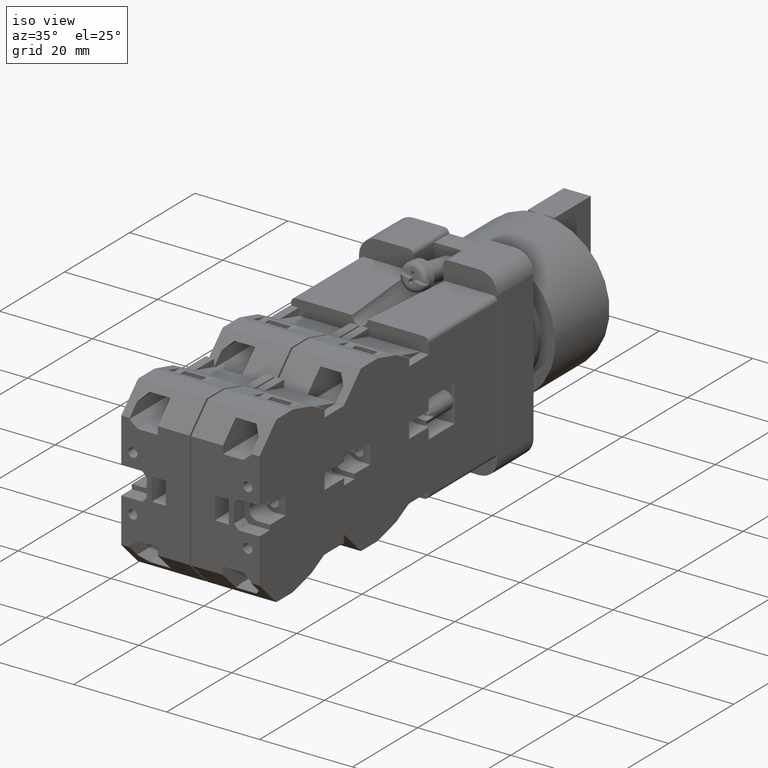
[diagram: clean part render]
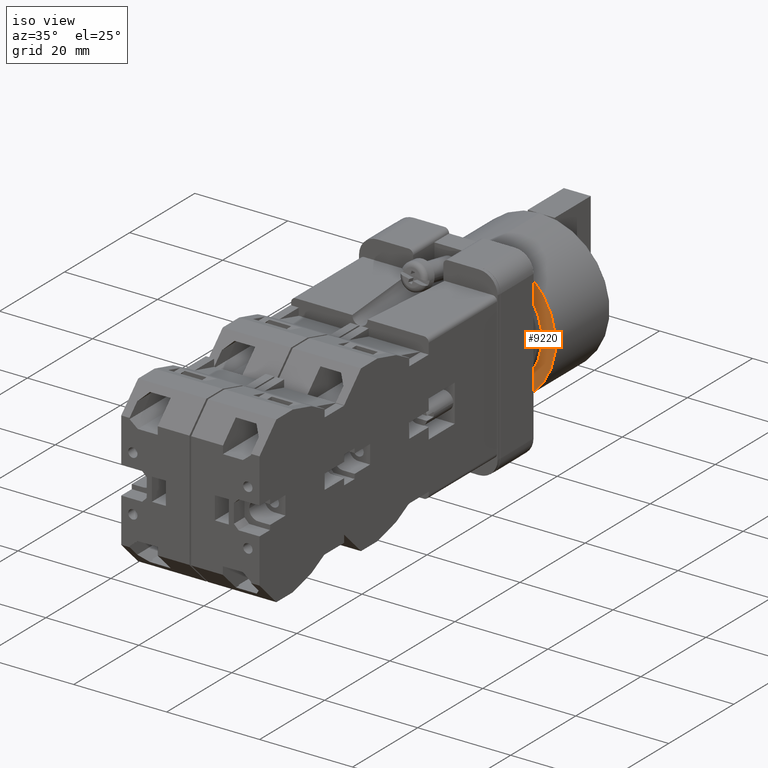
[diagram: same view with one face highlighted and labeled with its STEP entity id]
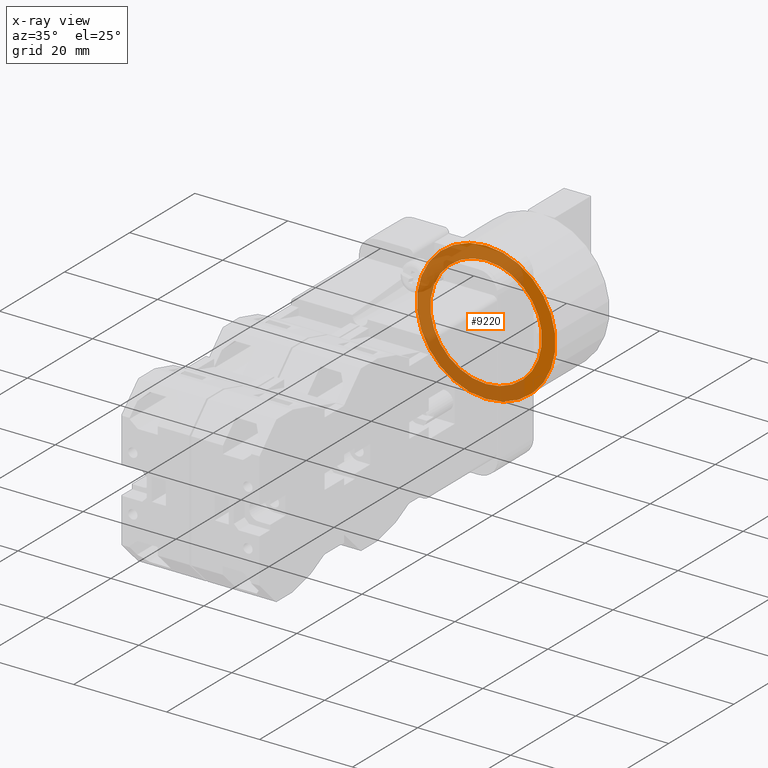
[diagram: x-ray of the same camera — body ghosted, the highlighted face saturated]
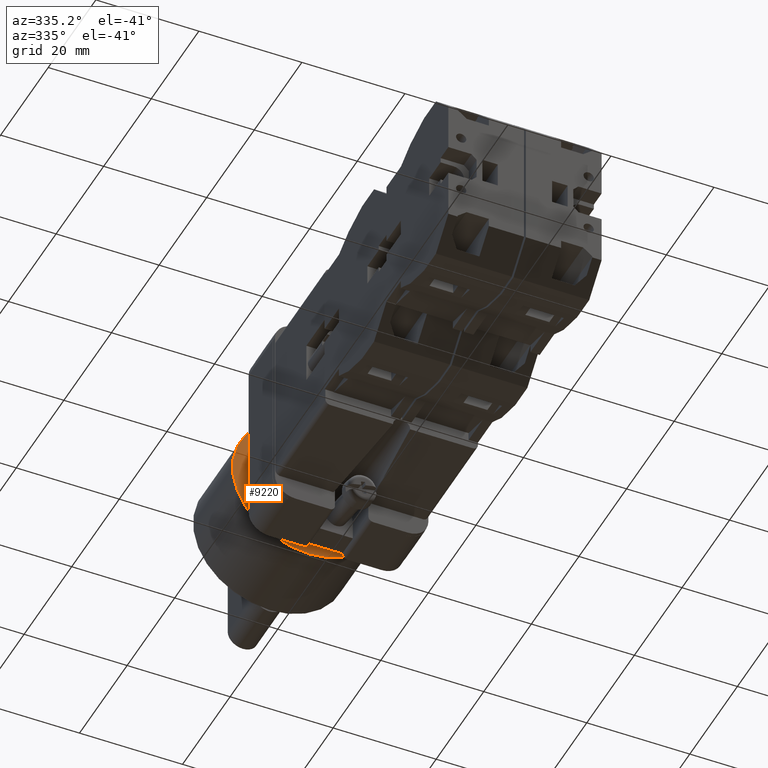
[diagram: same view with one face highlighted and labeled with its STEP entity id]
A machine part, iso view. The second image highlights one B-rep face of the part: STEP entity #9220.
The next image is the same camera in x-ray: the body ghosted, the highlighted face saturated — about 69% of this face is hidden behind the body in this view.
A second angle (auxiliary view) of the same face is appended — the face is thin or edge-on in the first view.
In plain terms, the highlighted planar face has unit normal (0, 1, 0).
Its self-contained STEP definition (entity closure, byte-faithful):
#112 = VERTEX_POINT ( 'NONE', #1036 ) ;
#454 = EDGE_CURVE ( 'NONE', #11276, #12038, #5378, .T. ) ;
#992 = CIRCLE ( 'NONE', #14868, 0.4724409448818898700 ) ;
#1036 = CARTESIAN_POINT ( 'NONE',  ( 5.785732909357575100E-017, 0.4484251968503937300, 0.4724409448818898700 ) ) ;
#1074 = VERTEX_POINT ( 'NONE', #16374 ) ;
#1082 = AXIS2_PLACEMENT_3D ( 'NONE', #3123, #12755, #4508 ) ;
#1468 = AXIS2_PLACEMENT_3D ( 'NONE', #1487, #16753, #8481 ) ;
#1487 = CARTESIAN_POINT ( 'NONE',  ( 0.0000000000000000000, 0.4484251968503937300, 0.0000000000000000000 ) ) ;
#2777 = EDGE_CURVE ( 'NONE', #112, #1074, #992, .T. ) ;
#3123 = CARTESIAN_POINT ( 'NONE',  ( 0.0000000000000000000, 0.4484251968503937300, 0.0000000000000000000 ) ) ;
#3693 = CIRCLE ( 'NONE', #7637, 0.5875984251968504600 ) ;
#4213 = FACE_OUTER_BOUND ( 'NONE', #17264, .T. ) ;
#4508 = DIRECTION ( 'NONE',  ( 0.0000000000000000000, 0.0000000000000000000, 1.000000000000000000 ) ) ;
#5378 = CIRCLE ( 'NONE', #16465, 0.5875984251968504600 ) ;
#6092 = DIRECTION ( 'NONE',  ( 0.0000000000000000000, 1.000000000000000000, 0.0000000000000000000 ) ) ;
#7490 = FACE_BOUND ( 'NONE', #9038, .T. ) ;
#7630 = ORIENTED_EDGE ( 'NONE', *, *, #2777, .T. ) ;
#7637 = AXIS2_PLACEMENT_3D ( 'NONE', #14362, #6092, #15754 ) ;
#7720 = ORIENTED_EDGE ( 'NONE', *, *, #454, .F. ) ;
#7828 = CIRCLE ( 'NONE', #1082, 0.4724409448818898700 ) ;
#8125 = DIRECTION ( 'NONE',  ( 0.0000000000000000000, 1.000000000000000000, 0.0000000000000000000 ) ) ;
#8481 = DIRECTION ( 'NONE',  ( 0.0000000000000000000, -0.0000000000000000000, 1.000000000000000000 ) ) ;
#8529 = CARTESIAN_POINT ( 'NONE',  ( 0.0000000000000000000, 0.4484251968503937300, -0.5875984251968504600 ) ) ;
#9038 = EDGE_LOOP ( 'NONE', ( #16264, #7630 ) ) ;
#9220 = ADVANCED_FACE ( 'NONE', ( #7490, #4213 ), #12546, .F. ) ;
#10316 = CARTESIAN_POINT ( 'NONE',  ( 7.196005306013484500E-017, 0.4484251968503937300, 0.5875984251968504600 ) ) ;
#11276 = VERTEX_POINT ( 'NONE', #10316 ) ;
#12038 = VERTEX_POINT ( 'NONE', #8529 ) ;
#12546 = PLANE ( 'NONE',  #1468 ) ;
#12755 = DIRECTION ( 'NONE',  ( 0.0000000000000000000, 1.000000000000000000, 0.0000000000000000000 ) ) ;
#14362 = CARTESIAN_POINT ( 'NONE',  ( 0.0000000000000000000, 0.4484251968503937300, 0.0000000000000000000 ) ) ;
#14868 = AXIS2_PLACEMENT_3D ( 'NONE', #16394, #8125, #17780 ) ;
#14964 = CARTESIAN_POINT ( 'NONE',  ( 0.0000000000000000000, 0.4484251968503937300, 0.0000000000000000000 ) ) ;
#15076 = DIRECTION ( 'NONE',  ( 0.0000000000000000000, 1.000000000000000000, 0.0000000000000000000 ) ) ;
#15754 = DIRECTION ( 'NONE',  ( 0.0000000000000000000, 0.0000000000000000000, 1.000000000000000000 ) ) ;
#16264 = ORIENTED_EDGE ( 'NONE', *, *, #17676, .T. ) ;
#16374 = CARTESIAN_POINT ( 'NONE',  ( 0.0000000000000000000, 0.4484251968503937300, -0.4724409448818898700 ) ) ;
#16394 = CARTESIAN_POINT ( 'NONE',  ( 0.0000000000000000000, 0.4484251968503937300, 0.0000000000000000000 ) ) ;
#16465 = AXIS2_PLACEMENT_3D ( 'NONE', #14964, #15076, #17997 ) ;
#16753 = DIRECTION ( 'NONE',  ( 0.0000000000000000000, 1.000000000000000000, 0.0000000000000000000 ) ) ;
#16776 = ORIENTED_EDGE ( 'NONE', *, *, #17757, .F. ) ;
#17264 = EDGE_LOOP ( 'NONE', ( #16776, #7720 ) ) ;
#17676 = EDGE_CURVE ( 'NONE', #1074, #112, #7828, .T. ) ;
#17757 = EDGE_CURVE ( 'NONE', #12038, #11276, #3693, .T. ) ;
#17780 = DIRECTION ( 'NONE',  ( 0.0000000000000000000, 0.0000000000000000000, 1.000000000000000000 ) ) ;
#17997 = DIRECTION ( 'NONE',  ( 0.0000000000000000000, 0.0000000000000000000, 1.000000000000000000 ) ) ;